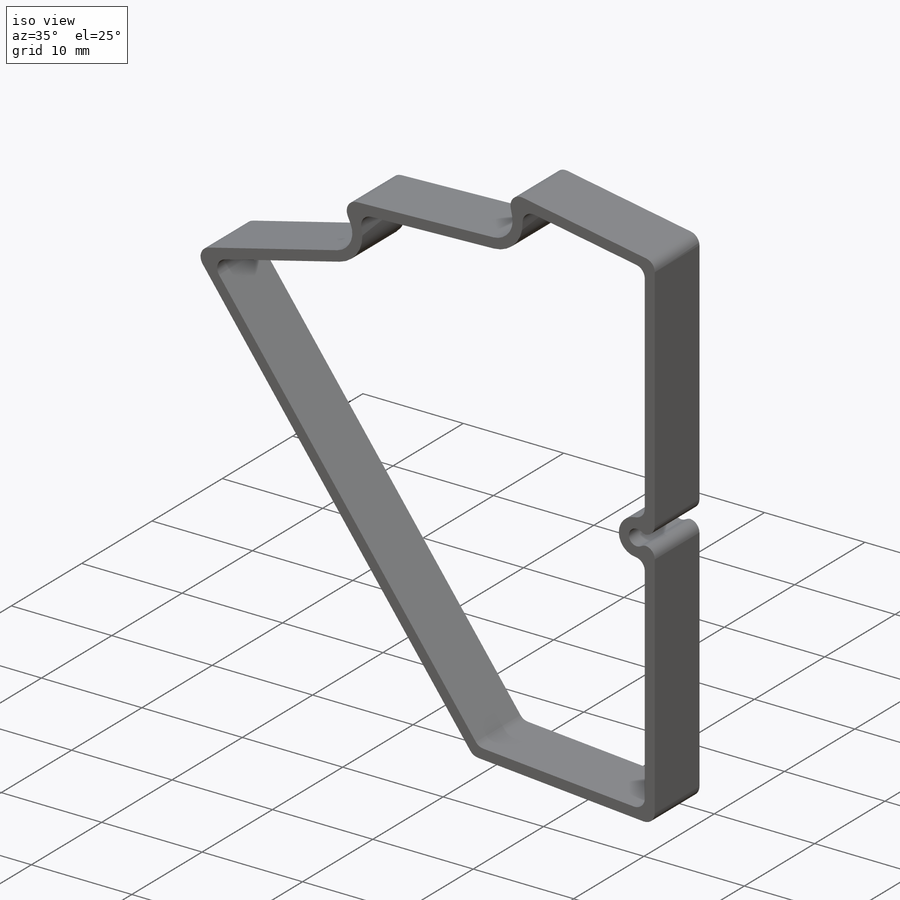
[diagram: iso view]
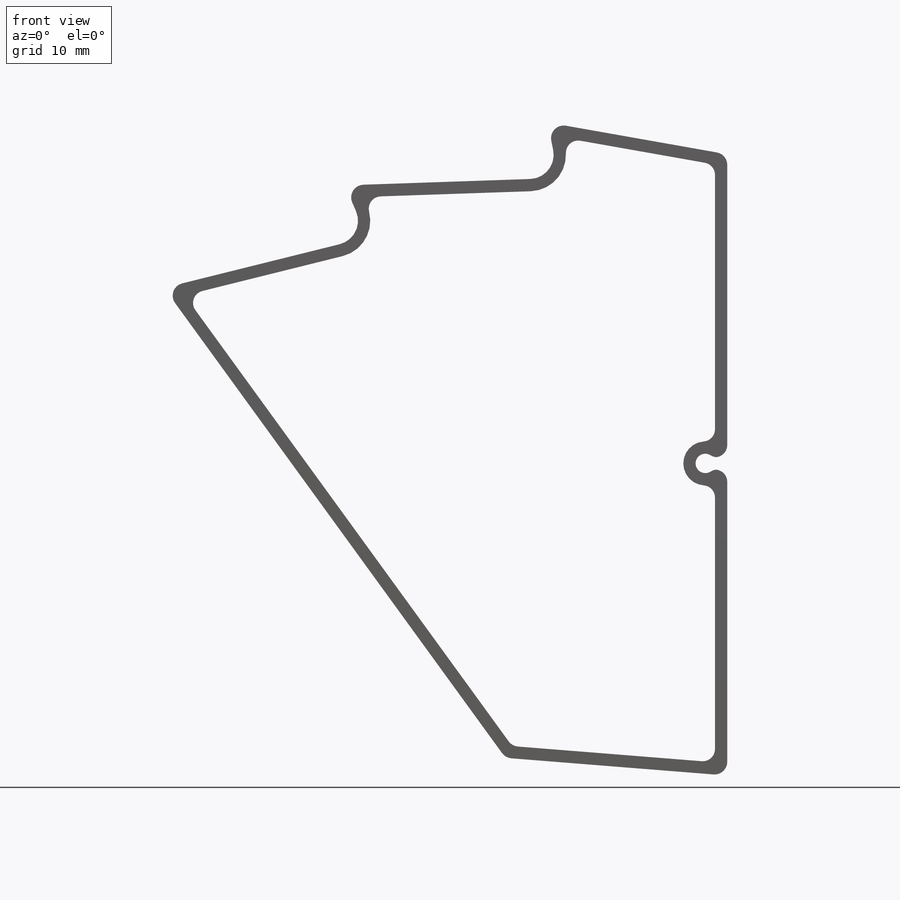
[diagram: front view]
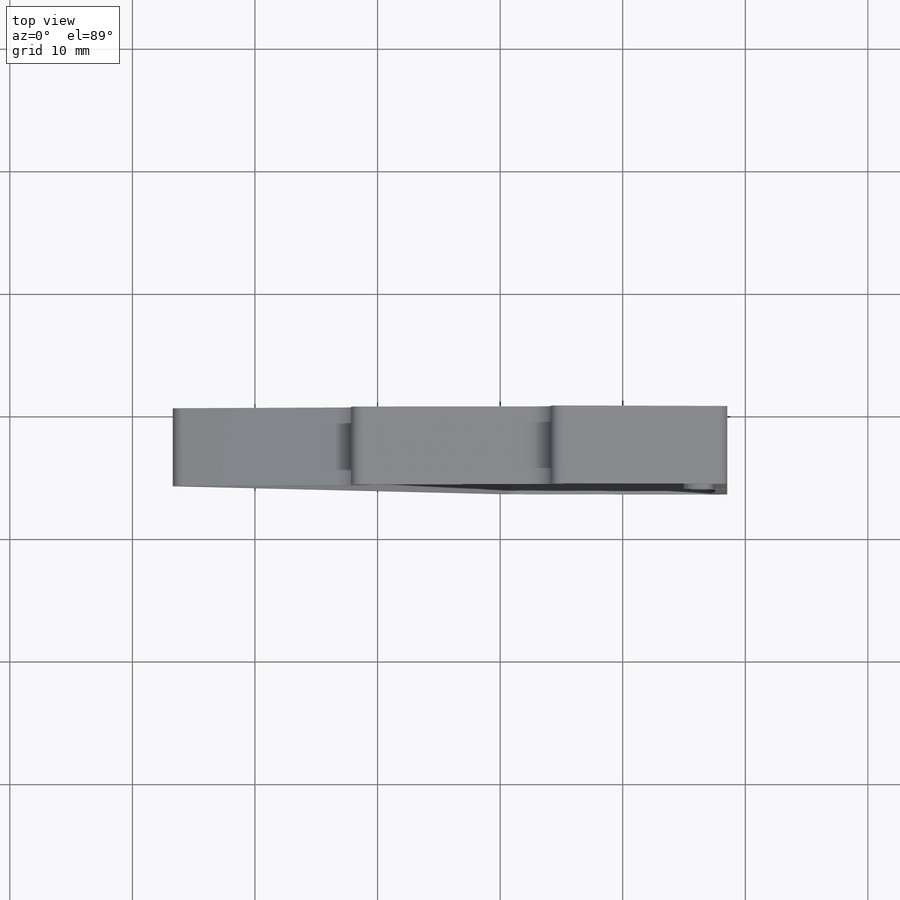
[diagram: top view]
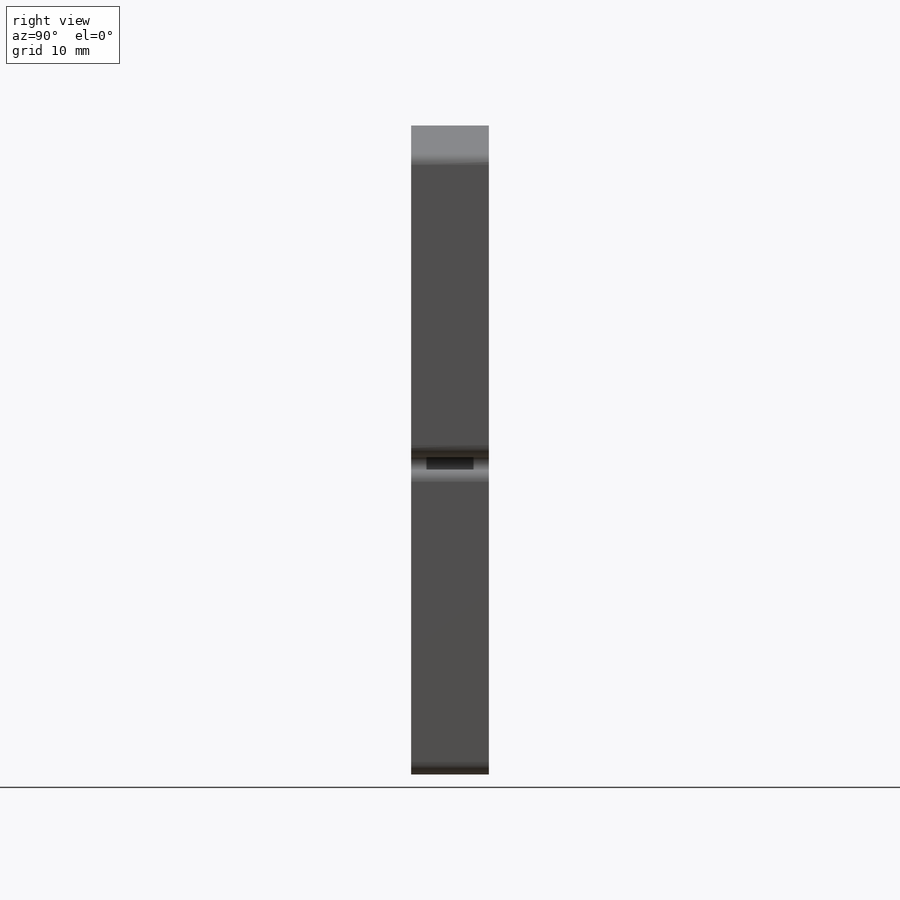
[diagram: right view]
SOLIDWORKS PART (.sldprt)
format: sldprt  version: not decoded by parser v0  size: 397,312 bytes
history: native  units: mm
features: sketch x7, extrude x2, cut_extrude x2, fillet x2, material x1, hole x1 (+11 scaffold rows collapsed)
feature tree (26):
  scaffold x11  (default folders/planes/origin — collapsed)
  material  "6061 Alloy"
  sketch  "copy of sector sketch with 470 micron offset to inside"  dims[c1.D1=~54.61226mm c1.D2=~155.350049mm c1.D12=1.5mm c1.D3=~106.055443mm c2.D3=36.0deg c2.D4=~126.613701mm c3.D4=~11.554081deg c3.D5=~127.034955mm c4.D5=12.0deg c4.D6=1.0mm c4.D7=1.0mm c4.D8=~152.080387mm c5.D8=~79.963091deg c5.D9=~152.080387mm c6.D9=~85.436553deg c6.D10=~19.673835mm c7.D10=12.0deg c7.D11=~13.173363mm c8.D11=12.0deg c8.D13=0.47mm]
  sketch  "linked to above sketch"  dims[D1=0.2mm]
  extrude  "Extrude1"  Depth=6.35mm
  sketch  "Sketch7"  dims[D1=1.0mm]
  cut_extrude  "Cut-Extrude1"  [1 undecoded]
  sketch  "Sketch6"  dims[D1=1.5875mm D2=1.0mm D3=2.0mm]
  extrude  "Boss-Extrude1"  [1 undecoded]
  hole  "1/16 (0.0625) Diameter Hole1"  Diameter=1.5875mm Depth=6.35mm
  sketch  "Sketch2"  dims[D1=2.0mm]
  sketch  "Sketch3"  dims[hole-wizard template sketch: 60 standard entries collapsed; hole parameters kept: c18.Thru Hole Depth=6.35mm]
  fillet  "Fillet1"  Radius=1mm
  sketch  "Sketch8"  dims[D1=1.0mm]
  cut_extrude  "Cut-Extrude2"  [1 undecoded]
  fillet  "Fillet2"  Radius=1mm
decode coverage: 11 of 14 modeling features carry decoded parameters
note: ~ marks probable driven/reference dimensions
note: 3 parameter values undecoded
summary: no parameter record found for 3 features
note: suppression state not decoded; provenance and decode notes live in map.json
